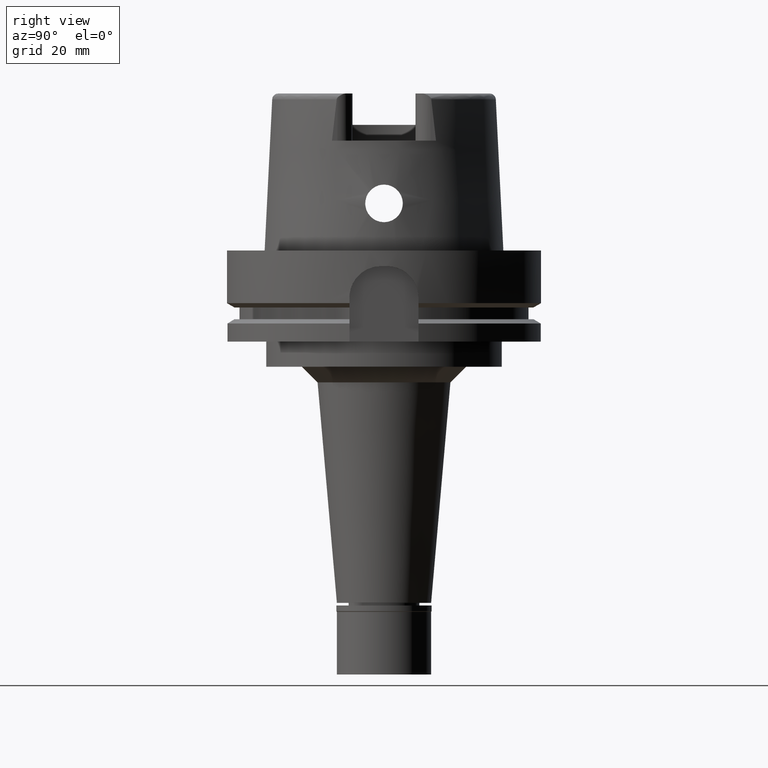
[diagram: clean part render]
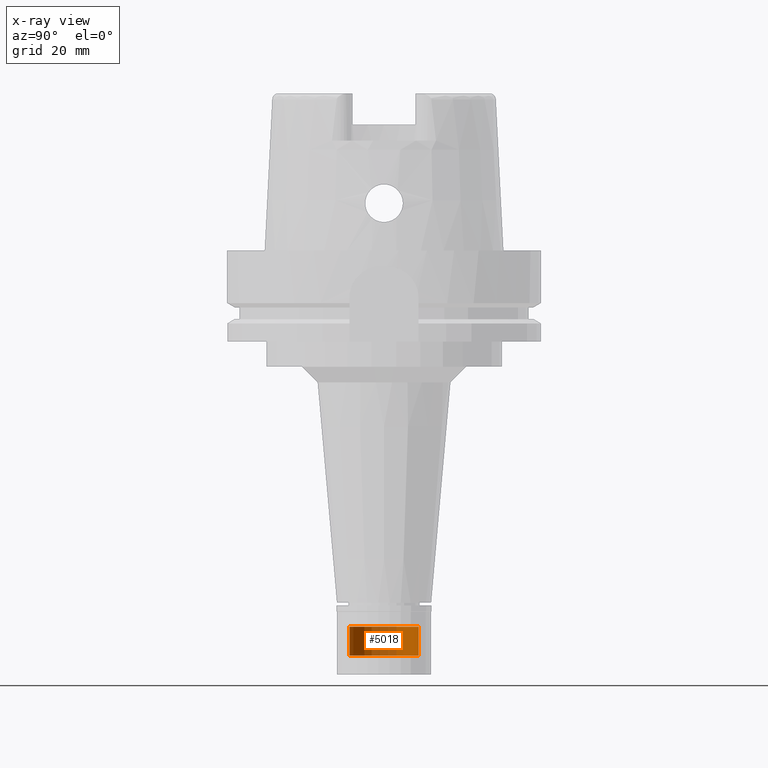
[diagram: x-ray — body ghosted, one internal face saturated and labeled with its STEP entity id]
A machine part, right view, then the same camera in x-ray: the body is ghosted and one INTERNAL B-rep face — a face not visible from any outside direction — is saturated and labeled: STEP entity #5018.
In plain terms, the highlighted cylindrical surface (edge-blend (fillet) strip) has radius 11 mm, axis along (0, 0, -1).
Its self-contained STEP definition (entity closure, byte-faithful):
#7 = EDGE_CURVE ( 'NONE', #805, #3296, #3139, .T. ) ;
#9 = CARTESIAN_POINT ( 'NONE',  ( 0.0000000000000000000, 11.00000000000000000, -16.00000000000000000 ) ) ;
#11 = EDGE_CURVE ( 'NONE', #2687, #3296, #1597, .T. ) ;
#142 = AXIS2_PLACEMENT_3D ( 'NONE', #2828, #2860, #2504 ) ;
#145 = DIRECTION ( 'NONE',  ( 0.0000000000000000000, 0.0000000000000000000, 1.000000000000000000 ) ) ;
#406 = CARTESIAN_POINT ( 'NONE',  ( 0.0000000000000000000, 0.0000000000000000000, 0.0000000000000000000 ) ) ;
#568 = VERTEX_POINT ( 'NONE', #2468 ) ;
#712 = EDGE_LOOP ( 'NONE', ( #2271, #3863, #755, #3284 ) ) ;
#755 = ORIENTED_EDGE ( 'NONE', *, *, #5149, .T. ) ;
#778 = CIRCLE ( 'NONE', #142, 11.00000000000000000 ) ;
#805 = VERTEX_POINT ( 'NONE', #4699 ) ;
#848 = CARTESIAN_POINT ( 'NONE',  ( 0.0000000000000000000, -11.00000000000000000, -6.799999999999999822 ) ) ;
#1146 = VECTOR ( 'NONE', #3428, 1000.000000000000000 ) ;
#1496 = AXIS2_PLACEMENT_3D ( 'NONE', #406, #2096, #5512 ) ;
#1505 = CARTESIAN_POINT ( 'NONE',  ( 0.0000000000000000000, 0.0000000000000000000, -6.799999999999999822 ) ) ;
#1597 = CIRCLE ( 'NONE', #5546, 11.00000000000000000 ) ;
#1643 = EDGE_CURVE ( 'NONE', #568, #2687, #5212, .T. ) ;
#2096 = DIRECTION ( 'NONE',  ( 0.0000000000000000000, 0.0000000000000000000, -1.000000000000000000 ) ) ;
#2271 = ORIENTED_EDGE ( 'NONE', *, *, #11, .T. ) ;
#2448 = DIRECTION ( 'NONE',  ( 0.0000000000000000000, 1.000000000000000000, 0.0000000000000000000 ) ) ;
#2468 = CARTESIAN_POINT ( 'NONE',  ( 0.0000000000000000000, 11.00000000000000000, -16.00000000000000000 ) ) ;
#2504 = DIRECTION ( 'NONE',  ( 0.0000000000000000000, -1.000000000000000000, 0.0000000000000000000 ) ) ;
#2687 = VERTEX_POINT ( 'NONE', #5537 ) ;
#2828 = CARTESIAN_POINT ( 'NONE',  ( 0.0000000000000000000, 0.0000000000000000000, -16.00000000000000000 ) ) ;
#2860 = DIRECTION ( 'NONE',  ( 0.0000000000000000000, 0.0000000000000000000, -1.000000000000000000 ) ) ;
#2908 = CYLINDRICAL_SURFACE ( 'NONE', #1496, 11.00000000000000000 ) ;
#3139 = LINE ( 'NONE', #4430, #5279 ) ;
#3284 = ORIENTED_EDGE ( 'NONE', *, *, #1643, .T. ) ;
#3296 = VERTEX_POINT ( 'NONE', #848 ) ;
#3428 = DIRECTION ( 'NONE',  ( 0.0000000000000000000, 0.0000000000000000000, 1.000000000000000000 ) ) ;
#3863 = ORIENTED_EDGE ( 'NONE', *, *, #7, .F. ) ;
#4430 = CARTESIAN_POINT ( 'NONE',  ( 0.0000000000000000000, -11.00000000000000000, -16.00000000000000000 ) ) ;
#4699 = CARTESIAN_POINT ( 'NONE',  ( 0.0000000000000000000, -11.00000000000000000, -16.00000000000000000 ) ) ;
#4936 = DIRECTION ( 'NONE',  ( 0.0000000000000000000, 0.0000000000000000000, 1.000000000000000000 ) ) ;
#5018 = ADVANCED_FACE ( 'NONE', ( #5115 ), #2908, .F. ) ;
#5115 = FACE_OUTER_BOUND ( 'NONE', #712, .T. ) ;
#5149 = EDGE_CURVE ( 'NONE', #805, #568, #778, .T. ) ;
#5212 = LINE ( 'NONE', #9, #1146 ) ;
#5279 = VECTOR ( 'NONE', #145, 1000.000000000000000 ) ;
#5512 = DIRECTION ( 'NONE',  ( 0.0000000000000000000, -1.000000000000000000, 0.0000000000000000000 ) ) ;
#5537 = CARTESIAN_POINT ( 'NONE',  ( 0.0000000000000000000, 11.00000000000000000, -6.799999999999999822 ) ) ;
#5546 = AXIS2_PLACEMENT_3D ( 'NONE', #1505, #4936, #2448 ) ;